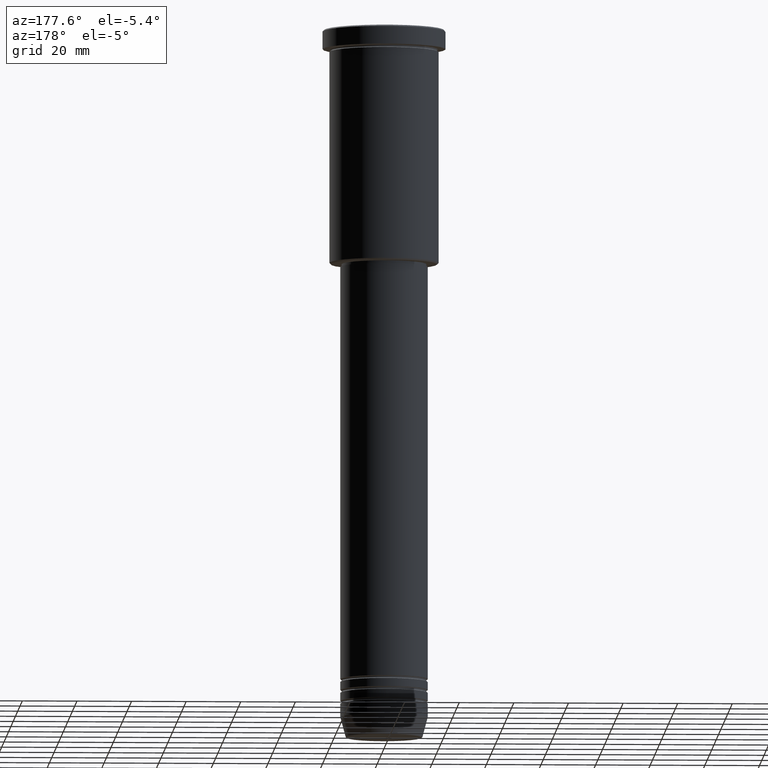
[diagram: clean part render]
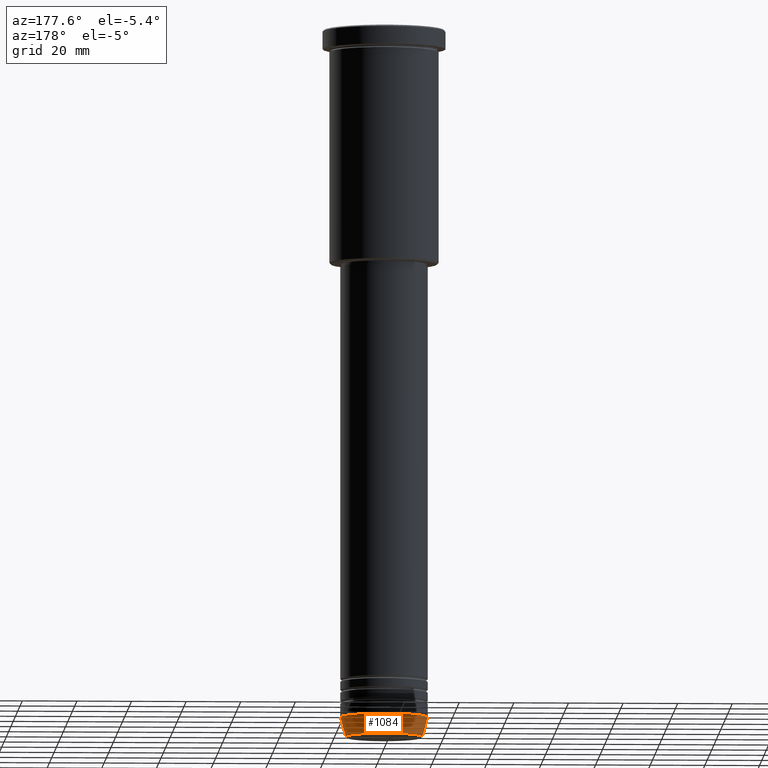
[diagram: same view with one face highlighted and labeled with its STEP entity id]
A machine part, auxiliary view. The second image highlights one B-rep face of the part: STEP entity #1084.
In plain terms, the highlighted conical surface has half-angle 15 deg.
Its self-contained STEP definition (entity closure, byte-faithful):
#5 = CARTESIAN_POINT ( 'NONE',  ( 14.08968047592161632, 0.000000000000000000, -259.6294095225512706 ) ) ;
#47 = ORIENTED_EDGE ( 'NONE', *, *, #389, .F. ) ;
#141 = CARTESIAN_POINT ( 'NONE',  ( -16.00000000000000000, 1.959434878635765131E-15, -252.5000000000000000 ) ) ;
#153 = CARTESIAN_POINT ( 'NONE',  ( 16.00000000000000000, 0.000000000000000000, -252.5000000000000000 ) ) ;
#230 = CARTESIAN_POINT ( 'NONE',  ( 0.000000000000000000, 0.000000000000000000, -259.6294095225512706 ) ) ;
#238 = VERTEX_POINT ( 'NONE', #5 ) ;
#255 = DIRECTION ( 'NONE',  ( -0.000000000000000000, -0.000000000000000000, 1.000000000000000000 ) ) ;
#256 = DIRECTION ( 'NONE',  ( 1.000000000000000000, 0.000000000000000000, 0.000000000000000000 ) ) ;
#335 = CARTESIAN_POINT ( 'NONE',  ( 0.000000000000000000, 0.000000000000000000, -252.5000000000000000 ) ) ;
#345 = DIRECTION ( 'NONE',  ( 1.000000000000000000, 0.000000000000000000, 0.000000000000000000 ) ) ;
#354 = EDGE_CURVE ( 'NONE', #238, #641, #359, .T. ) ;
#359 = CIRCLE ( 'NONE', #873, 14.08968047592161632 ) ;
#389 = EDGE_CURVE ( 'NONE', #1112, #1150, #749, .T. ) ;
#424 = CARTESIAN_POINT ( 'NONE',  ( -16.00000000000000000, 1.959434878635765131E-15, -252.5000000000000000 ) ) ;
#425 = FACE_OUTER_BOUND ( 'NONE', #846, .T. ) ;
#431 = DIRECTION ( 'NONE',  ( 1.000000000000000000, 0.000000000000000000, 0.000000000000000000 ) ) ;
#438 = DIRECTION ( 'NONE',  ( -0.000000000000000000, -0.000000000000000000, 1.000000000000000000 ) ) ;
#475 = ORIENTED_EDGE ( 'NONE', *, *, #354, .T. ) ;
#520 = ORIENTED_EDGE ( 'NONE', *, *, #1069, .F. ) ;
#641 = VERTEX_POINT ( 'NONE', #853 ) ;
#667 = EDGE_CURVE ( 'NONE', #641, #1150, #958, .T. ) ;
#727 = CARTESIAN_POINT ( 'NONE',  ( 16.00000000000000000, 0.000000000000000000, -252.5000000000000000 ) ) ;
#749 = CIRCLE ( 'NONE', #966, 16.00000000000000000 ) ;
#786 = AXIS2_PLACEMENT_3D ( 'NONE', #335, #438, #256 ) ;
#846 = EDGE_LOOP ( 'NONE', ( #475, #1131, #47, #520 ) ) ;
#853 = CARTESIAN_POINT ( 'NONE',  ( -14.08968047592161632, 1.842461544110200874E-15, -259.6294095225512706 ) ) ;
#873 = AXIS2_PLACEMENT_3D ( 'NONE', #230, #255, #345 ) ;
#929 = VECTOR ( 'NONE', #937, 1000.000000000000000 ) ;
#937 = DIRECTION ( 'NONE',  ( -0.2588190451025213501, 3.169619151431772337E-17, 0.9659258262890680902 ) ) ;
#958 = LINE ( 'NONE', #141, #929 ) ;
#966 = AXIS2_PLACEMENT_3D ( 'NONE', #988, #1169, #431 ) ;
#988 = CARTESIAN_POINT ( 'NONE',  ( 0.000000000000000000, 0.000000000000000000, -252.5000000000000000 ) ) ;
#1038 = VECTOR ( 'NONE', #1073, 1000.000000000000000 ) ;
#1069 = EDGE_CURVE ( 'NONE', #238, #1112, #1162, .T. ) ;
#1073 = DIRECTION ( 'NONE',  ( 0.2588190451025213501, 0.000000000000000000, 0.9659258262890680902 ) ) ;
#1081 = CONICAL_SURFACE ( 'NONE', #786, 16.00000000000000000, 0.2617993877991500740 ) ;
#1084 = ADVANCED_FACE ( 'NONE', ( #425 ), #1081, .T. ) ;
#1112 = VERTEX_POINT ( 'NONE', #153 ) ;
#1131 = ORIENTED_EDGE ( 'NONE', *, *, #667, .T. ) ;
#1150 = VERTEX_POINT ( 'NONE', #424 ) ;
#1162 = LINE ( 'NONE', #727, #1038 ) ;
#1169 = DIRECTION ( 'NONE',  ( -0.000000000000000000, -0.000000000000000000, 1.000000000000000000 ) ) ;